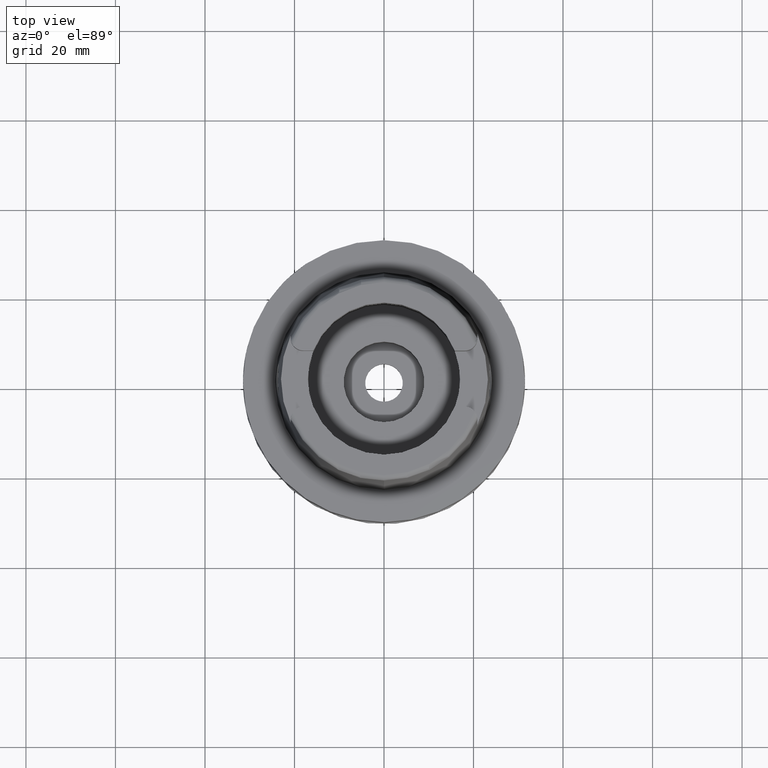
[diagram: clean part render]
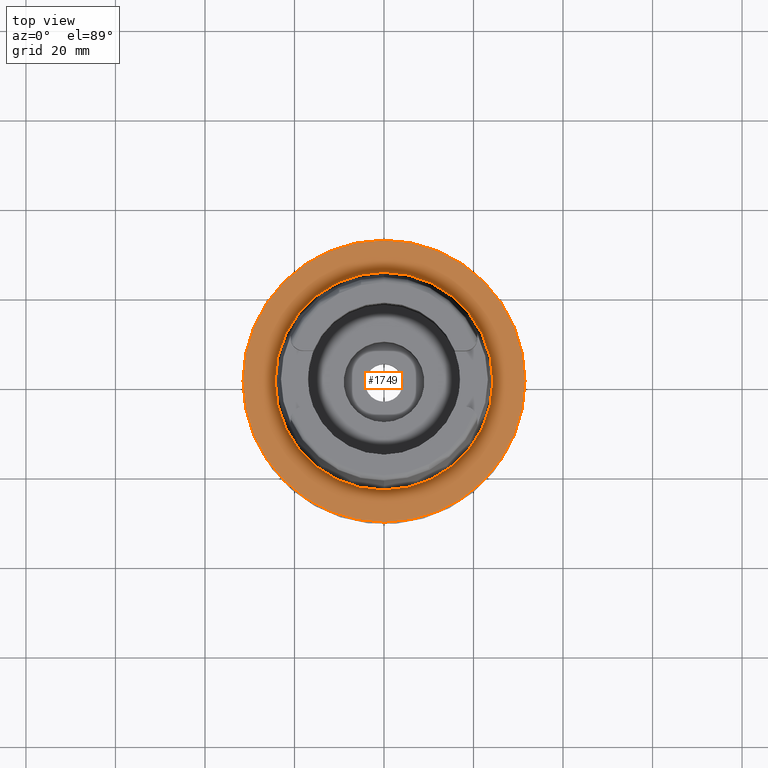
[diagram: same view with one face highlighted and labeled with its STEP entity id]
A machine part, top view. The second image highlights one B-rep face of the part: STEP entity #1749.
In plain terms, the highlighted planar face has unit normal (0, 0, 1).
Its self-contained STEP definition (entity closure, byte-faithful):
#137 = VERTEX_POINT ( 'NONE', #4817 ) ;
#201 = CARTESIAN_POINT ( 'NONE',  ( 0.0000000000000000000, 0.0000000000000000000, 0.0000000000000000000 ) ) ;
#328 = DIRECTION ( 'NONE',  ( 0.0000000000000000000, 0.0000000000000000000, 1.000000000000000000 ) ) ;
#369 = VERTEX_POINT ( 'NONE', #3868 ) ;
#380 = ORIENTED_EDGE ( 'NONE', *, *, #1980, .F. ) ;
#478 = AXIS2_PLACEMENT_3D ( 'NONE', #4565, #328, #803 ) ;
#569 = CIRCLE ( 'NONE', #3661, 24.31503482328999866 ) ;
#614 = CIRCLE ( 'NONE', #3427, 31.50000000000000000 ) ;
#635 = CARTESIAN_POINT ( 'NONE',  ( 0.0000000000000000000, -24.31503482328999866, -9.485745522396998208E-13 ) ) ;
#803 = DIRECTION ( 'NONE',  ( 1.000000000000000000, 0.0000000000000000000, 0.0000000000000000000 ) ) ;
#883 = CARTESIAN_POINT ( 'NONE',  ( 0.0000000000000000000, -31.50000000000000000, 0.0000000000000000000 ) ) ;
#890 = VERTEX_POINT ( 'NONE', #635 ) ;
#1051 = ORIENTED_EDGE ( 'NONE', *, *, #1106, .F. ) ;
#1064 = DIRECTION ( 'NONE',  ( 0.0000000000000000000, 0.0000000000000000000, -1.000000000000000000 ) ) ;
#1106 = EDGE_CURVE ( 'NONE', #137, #890, #2843, .T. ) ;
#1298 = EDGE_CURVE ( 'NONE', #369, #5247, #2653, .T. ) ;
#1326 = DIRECTION ( 'NONE',  ( 0.0000000000000000000, 0.0000000000000000000, 1.000000000000000000 ) ) ;
#1382 = CARTESIAN_POINT ( 'NONE',  ( 0.0000000000000000000, 0.0000000000000000000, -1.705302565823999926E-12 ) ) ;
#1686 = AXIS2_PLACEMENT_3D ( 'NONE', #201, #1064, #3212 ) ;
#1749 = ADVANCED_FACE ( 'NONE', ( #2875, #4645 ), #4196, .T. ) ;
#1980 = EDGE_CURVE ( 'NONE', #890, #137, #569, .T. ) ;
#2398 = DIRECTION ( 'NONE',  ( 0.0000000000000000000, 0.0000000000000000000, -1.000000000000000000 ) ) ;
#2488 = DIRECTION ( 'NONE',  ( 0.0000000000000000000, -1.000000000000000000, 0.0000000000000000000 ) ) ;
#2653 = CIRCLE ( 'NONE', #1686, 31.50000000000000000 ) ;
#2843 = CIRCLE ( 'NONE', #5416, 24.31503482328999866 ) ;
#2875 = FACE_OUTER_BOUND ( 'NONE', #3876, .T. ) ;
#3002 = DIRECTION ( 'NONE',  ( 0.0000000000000000000, -1.000000000000000000, 0.0000000000000000000 ) ) ;
#3212 = DIRECTION ( 'NONE',  ( 0.0000000000000000000, 1.000000000000000000, 0.0000000000000000000 ) ) ;
#3427 = AXIS2_PLACEMENT_3D ( 'NONE', #3723, #2398, #2488 ) ;
#3431 = EDGE_LOOP ( 'NONE', ( #1051, #380 ) ) ;
#3477 = DIRECTION ( 'NONE',  ( 0.0000000000000000000, 0.0000000000000000000, 1.000000000000000000 ) ) ;
#3661 = AXIS2_PLACEMENT_3D ( 'NONE', #5089, #3477, #3002 ) ;
#3723 = CARTESIAN_POINT ( 'NONE',  ( 0.0000000000000000000, 0.0000000000000000000, 0.0000000000000000000 ) ) ;
#3868 = CARTESIAN_POINT ( 'NONE',  ( 0.0000000000000000000, 31.50000000000000000, 0.0000000000000000000 ) ) ;
#3876 = EDGE_LOOP ( 'NONE', ( #4206, #4795 ) ) ;
#3900 = DIRECTION ( 'NONE',  ( 0.0000000000000000000, 1.000000000000000000, 0.0000000000000000000 ) ) ;
#4196 = PLANE ( 'NONE',  #478 ) ;
#4206 = ORIENTED_EDGE ( 'NONE', *, *, #1298, .F. ) ;
#4565 = CARTESIAN_POINT ( 'NONE',  ( 0.0000000000000000000, 0.0000000000000000000, 0.0000000000000000000 ) ) ;
#4645 = FACE_BOUND ( 'NONE', #3431, .T. ) ;
#4795 = ORIENTED_EDGE ( 'NONE', *, *, #5092, .F. ) ;
#4817 = CARTESIAN_POINT ( 'NONE',  ( 0.0000000000000000000, 24.31503482328999866, -1.705302565823999926E-12 ) ) ;
#5089 = CARTESIAN_POINT ( 'NONE',  ( 0.0000000000000000000, 0.0000000000000000000, -1.705302565823999926E-12 ) ) ;
#5092 = EDGE_CURVE ( 'NONE', #5247, #369, #614, .T. ) ;
#5247 = VERTEX_POINT ( 'NONE', #883 ) ;
#5416 = AXIS2_PLACEMENT_3D ( 'NONE', #1382, #1326, #3900 ) ;